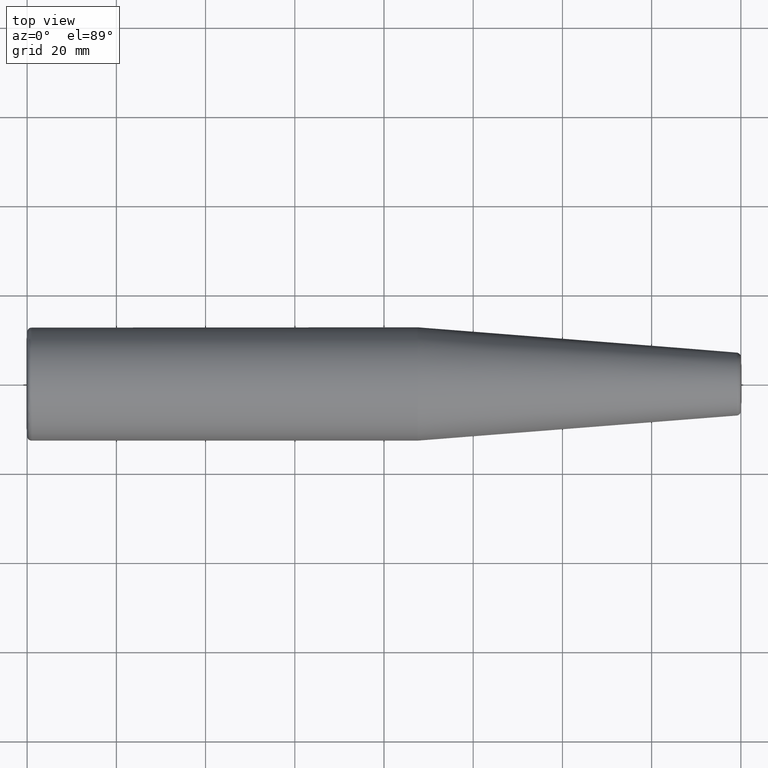
[diagram: clean part render]
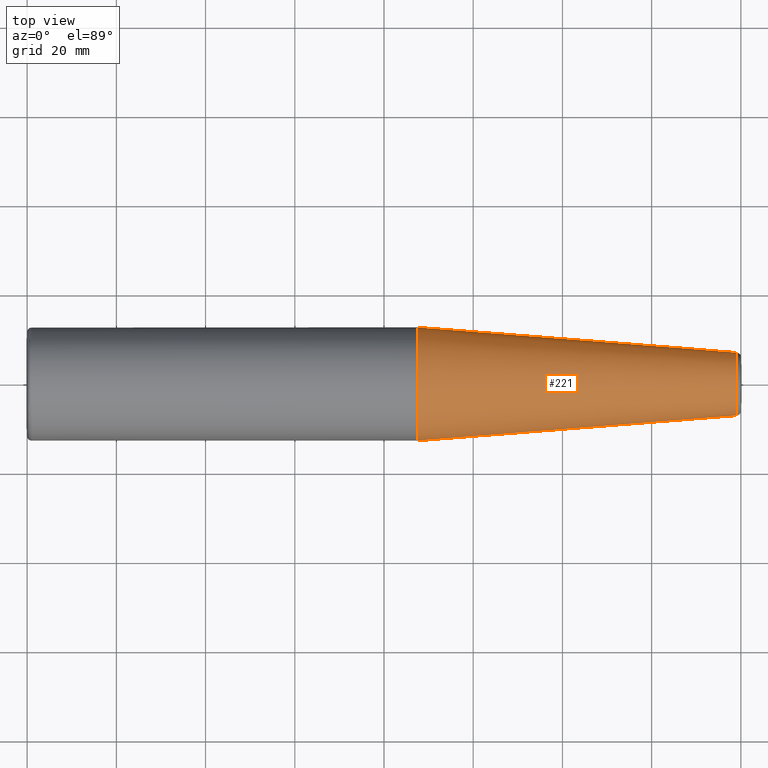
[diagram: same view with one face highlighted and labeled with its STEP entity id]
A machine part, top view. The second image highlights one B-rep face of the part: STEP entity #221.
In plain terms, the highlighted conical surface has half-angle 4.5 deg.
Its self-contained STEP definition (entity closure, byte-faithful):
#27=CONICAL_SURFACE('',#276,9.85,0.0785398163397451);
#38=FACE_OUTER_BOUND('',#55,.T.);
#55=EDGE_LOOP('',(#188,#189,#190,#191,#192));
#68=LINE('',#415,#77);
#77=VECTOR('',#348,9.85);
#91=CIRCLE('',#267,12.7);
#92=CIRCLE('',#270,7.07252684207492);
#93=CIRCLE('',#271,7.07252684207492);
#110=VERTEX_POINT('',#399);
#111=VERTEX_POINT('',#404);
#112=VERTEX_POINT('',#405);
#135=EDGE_CURVE('',#110,#110,#91,.T.);
#136=EDGE_CURVE('',#111,#112,#92,.T.);
#137=EDGE_CURVE('',#112,#111,#93,.T.);
#141=EDGE_CURVE('',#110,#112,#68,.T.);
#188=ORIENTED_EDGE('',*,*,#135,.F.);
#189=ORIENTED_EDGE('',*,*,#141,.T.);
#190=ORIENTED_EDGE('',*,*,#136,.F.);
#191=ORIENTED_EDGE('',*,*,#137,.F.);
#192=ORIENTED_EDGE('',*,*,#141,.F.);
#221=ADVANCED_FACE('',(#38),#27,.T.);
#267=AXIS2_PLACEMENT_3D('',#401,#328,#329);
#270=AXIS2_PLACEMENT_3D('',#406,#334,#335);
#271=AXIS2_PLACEMENT_3D('',#407,#336,#337);
#276=AXIS2_PLACEMENT_3D('',#414,#346,#347);
#328=DIRECTION('center_axis',(-1.,0.,0.));
#329=DIRECTION('ref_axis',(0.,0.,1.));
#334=DIRECTION('center_axis',(1.,0.,0.));
#335=DIRECTION('ref_axis',(0.,-1.,-3.06161699786838E-17));
#336=DIRECTION('center_axis',(1.,0.,0.));
#337=DIRECTION('ref_axis',(0.,-1.,-3.06161699786838E-17));
#346=DIRECTION('center_axis',(-1.,0.,0.));
#347=DIRECTION('ref_axis',(0.,1.,0.));
#348=DIRECTION('',(0.996917333733128,0.0784590957278453,-9.60846804471015E-18));
#399=CARTESIAN_POINT('',(-72.4253669961954,-12.7,1.55530143491714E-15));
#401=CARTESIAN_POINT('Origin',(-72.4253669961954,0.,0.));
#404=CARTESIAN_POINT('',(-0.921540904272149,-8.66134735903079E-16,-7.07252684207492));
#405=CARTESIAN_POINT('',(-0.921540904272149,-7.07252684207492,8.66134735903079E-16));
#406=CARTESIAN_POINT('Origin',(-0.921540904272149,0.,1.08266841987885E-15));
#407=CARTESIAN_POINT('Origin',(-0.921540904272149,0.,1.08266841987885E-15));
#414=CARTESIAN_POINT('Origin',(-36.2126834980977,0.,0.));
#415=CARTESIAN_POINT('',(-36.2126834980977,-9.85,1.20627709716014E-15));